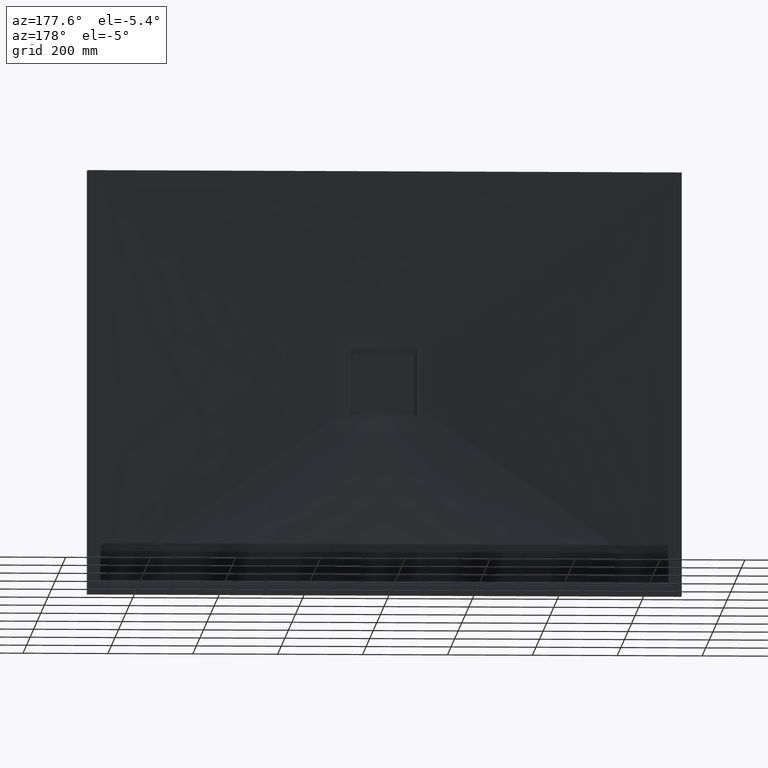
[diagram: clean part render]
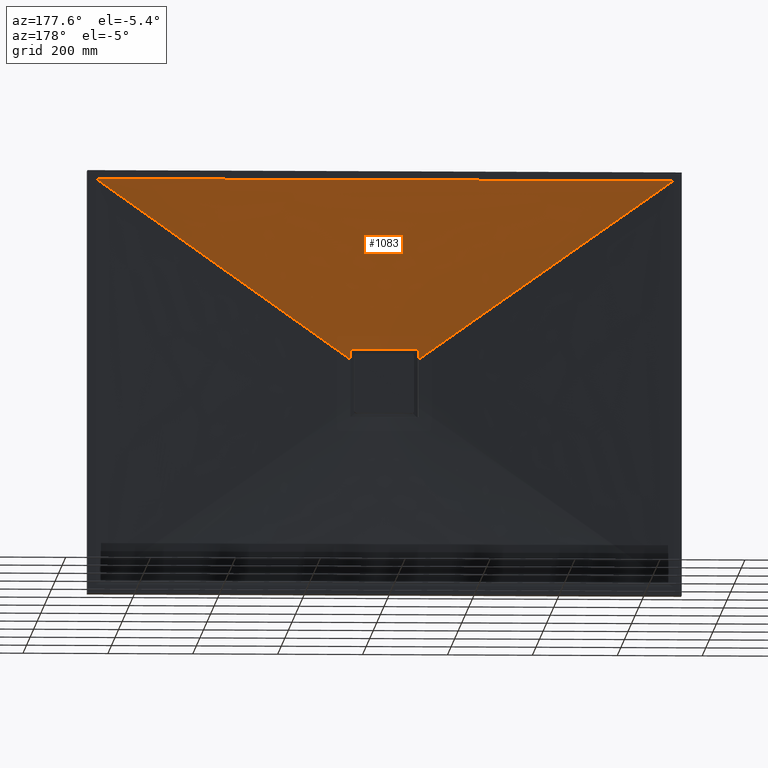
[diagram: same view with one face highlighted and labeled with its STEP entity id]
A machine part, auxiliary view. The second image highlights one B-rep face of the part: STEP entity #1083.
In plain terms, the highlighted face is a freeform B-spline surface patch.
Its self-contained STEP definition (entity closure, byte-faithful):
#6 = CARTESIAN_POINT ( 'NONE',  ( 80.00000000000007100, 20.45860607811348700, 63.48082369487021000 ) ) ;
#59 = CARTESIAN_POINT ( 'NONE',  ( 77.50000000000056800, 20.75706579653857600, 80.00000000000012800 ) ) ;
#105 = CARTESIAN_POINT ( 'NONE',  ( 453.3333333333331400, 35.00000000000014200, 480.0000000000000600 ) ) ;
#106 = CARTESIAN_POINT ( 'NONE',  ( 51.80680068004761600, 20.00000000000001800, 61.03328764796267300 ) ) ;
#107 = CARTESIAN_POINT ( 'NONE',  ( 49.43009145341292800, 20.00000000000001800, 62.97968655354080200 ) ) ;
#119 = CARTESIAN_POINT ( 'NONE',  ( 538.3333333333339400, 35.00000000000014200, 480.0000000000000600 ) ) ;
#121 = CARTESIAN_POINT ( 'NONE',  ( 64.58357499661224200, 20.59916441585733100, 80.00000000000012800 ) ) ;
#131 = VECTOR ( 'NONE', #470, 1000.000000000000000 ) ;
#139 = CARTESIAN_POINT ( 'NONE',  ( 58.28454295115470500, 20.00000000000001800, 54.87369494992555700 ) ) ;
#141 = CARTESIAN_POINT ( 'NONE',  ( 79.98381714763809200, 20.74026820298272300, 77.82733191836771900 ) ) ;
#149 = CARTESIAN_POINT ( 'NONE',  ( -51.80680068004583900, 20.00000000000001800, 61.03328764796267300 ) ) ;
#163 = CARTESIAN_POINT ( 'NONE',  ( -538.3333333333339400, 35.00000000000014200, 480.0000000000000600 ) ) ;
#166 = CARTESIAN_POINT ( 'NONE',  ( 51.66729820673268800, 20.42926260430750300, 80.00000000000014200 ) ) ;
#188 = CARTESIAN_POINT ( 'NONE',  ( -79.74649152433295300, 20.75411443861686300, 78.60894243231788900 ) ) ;
#200 = CARTESIAN_POINT ( 'NONE',  ( -25.83427551179265800, 20.12749929265572400, 80.00000000000012800 ) ) ;
#204 = CARTESIAN_POINT ( 'NONE',  ( -56.23397854736467100, 20.00000000000001800, 56.98022862849527600 ) ) ;
#220 = ORIENTED_EDGE ( 'NONE', *, *, #734, .T. ) ;
#221 = CARTESIAN_POINT ( 'NONE',  ( 80.00000000000007100, 20.73350657552541800, 77.50000000000012800 ) ) ;
#238 = CARTESIAN_POINT ( 'NONE',  ( 79.87240730175285800, 20.74912490909729700, 78.30529735940717700 ) ) ;
#242 = VECTOR ( 'NONE', #1957, 999.9999999999998900 ) ;
#260 = CARTESIAN_POINT ( 'NONE',  ( 78.15820255379992400, 20.76362837704677800, 79.93366033475659500 ) ) ;
#274 = CARTESIAN_POINT ( 'NONE',  ( -58.28454295115470500, 20.00000000000001800, 54.87369494992555700 ) ) ;
#285 = FACE_OUTER_BOUND ( 'NONE', #3033, .T. ) ;
#288 = VERTEX_POINT ( 'NONE', #2056 ) ;
#301 = CARTESIAN_POINT ( 'NONE',  ( 56.66666666666664300, 35.00000000000014200, 480.0000000000000600 ) ) ;
#302 = CARTESIAN_POINT ( 'NONE',  ( -6.908626131613360100, 20.00000000000001800, 79.77533509365680700 ) ) ;
#317 = CARTESIAN_POINT ( 'NONE',  ( 77.50000000000056800, 20.75706579653857600, 80.00000000000012800 ) ) ;
#334 = VERTEX_POINT ( 'NONE', #834 ) ;
#356 = CARTESIAN_POINT ( 'NONE',  ( -311.6666666666674200, 35.00000000000014200, 480.0000000000000600 ) ) ;
#414 = B_SPLINE_CURVE_WITH_KNOTS ( 'NONE', 3,
 ( #317, #121, #166, #2996, #2517, #2639, #200, #2579, #975, #449 ),
 .UNSPECIFIED., .F., .F.,
 ( 4, 2, 2, 2, 4 ),
 ( 0.0000000000000000000, 0.03875217006288059200, 0.07750434012576118400, 0.1162565101886417900, 0.1550086802515223700 ),
 .UNSPECIFIED. ) ;
#423 = CARTESIAN_POINT ( 'NONE',  ( 79.38368863363234600, 20.76143561031202700, 79.15175346207749400 ) ) ;
#449 = CARTESIAN_POINT ( 'NONE',  ( -77.50000000000056800, 20.75706579653857600, 80.00000000000012800 ) ) ;
#466 = CARTESIAN_POINT ( 'NONE',  ( -679.9999999999997700, 35.00000000000014200, 480.0000000000000600 ) ) ;
#470 = DIRECTION ( 'NONE',  ( 1.000000000000000000, 0.0000000000000000000, 0.0000000000000000000 ) ) ;
#525 = CARTESIAN_POINT ( 'NONE',  ( -79.93368267412498100, 20.74670891633738600, 78.15810226411544200 ) ) ;
#551 = CARTESIAN_POINT ( 'NONE',  ( 79.48917342036301600, 20.75992770636584300, 79.02310481713860200 ) ) ;
#564 = CARTESIAN_POINT ( 'NONE',  ( 79.02751074129675100, 20.76438081022865100, 79.48587502428920000 ) ) ;
#566 = CARTESIAN_POINT ( 'NONE',  ( -80.00000000000007100, 20.74051526655202000, 77.83008245027943400 ) ) ;
#574 = CARTESIAN_POINT ( 'NONE',  ( 80.00000000000008500, 20.73701092807298700, 77.66504155642667200 ) ) ;
#575 = LINE ( 'NONE', #1711, #2250 ) ;
#595 = CARTESIAN_POINT ( 'NONE',  ( -80.00000000000007100, 20.73350657552541800, 77.50000000000024200 ) ) ;
#609 = LINE ( 'NONE', #1993, #242 ) ;
#621 = CARTESIAN_POINT ( 'NONE',  ( 79.15324876267757800, 20.76365048624584400, 79.38237639611887200 ) ) ;
#634 = CARTESIAN_POINT ( 'NONE',  ( -566.6666666666664000, 35.00000000000014200, 480.0000000000000600 ) ) ;
#641 = CARTESIAN_POINT ( 'NONE',  ( -80.00000000000007100, 20.73350657552541800, 77.50000000000024200 ) ) ;
#666 = CARTESIAN_POINT ( 'NONE',  ( 79.92040446721443900, 20.74631211121283800, 78.14663438106234100 ) ) ;
#692 = CARTESIAN_POINT ( 'NONE',  ( -77.50000000000056800, 20.75706579653857600, 80.00000000000012800 ) ) ;
#719 = CARTESIAN_POINT ( 'NONE',  ( -33.04474773912780000, 20.00000000000001800, 72.93233070859162100 ) ) ;
#734 = EDGE_CURVE ( 'NONE', #3086, #945, #2422, .T. ) ;
#750 = EDGE_CURVE ( 'NONE', #2405, #1628, #1140, .T. ) ;
#766 = CARTESIAN_POINT ( 'NONE',  ( -80.00000000000007100, 20.35734355943930000, 56.47058823529427200 ) ) ;
#834 = CARTESIAN_POINT ( 'NONE',  ( 80.00000000000007100, 20.73350657552541800, 77.50000000000012800 ) ) ;
#836 = CARTESIAN_POINT ( 'NONE',  ( -80.00000000000007100, 20.45860607811348700, 63.48082369487030300 ) ) ;
#890 = CARTESIAN_POINT ( 'NONE',  ( -26.87177666348894400, 20.00000000000001800, 75.42537924782033100 ) ) ;
#894 = ORIENTED_EDGE ( 'NONE', *, *, #1439, .T. ) ;
#916 = EDGE_CURVE ( 'NONE', #1628, #288, #575, .T. ) ;
#917 = CARTESIAN_POINT ( 'NONE',  ( -113.3333333333332900, 35.00000000000014200, 480.0000000000000600 ) ) ;
#923 = CARTESIAN_POINT ( 'NONE',  ( -49.43009145341115100, 20.00000000000001800, 62.97968655354080200 ) ) ;
#945 = VERTEX_POINT ( 'NONE', #595 ) ;
#975 = CARTESIAN_POINT ( 'NONE',  ( -64.58357517508157700, 20.59916441803910200, 80.00000000000009900 ) ) ;
#988 = B_SPLINE_CURVE_WITH_KNOTS ( 'NONE', 3,
 ( #1081, #6, #1011, #221 ),
 .UNSPECIFIED., .F., .F.,
 ( 4, 4 ),
 ( 0.0000000000000000000, 0.02103277579836349300 ),
 .UNSPECIFIED. ) ;
#1011 = CARTESIAN_POINT ( 'NONE',  ( 80.00000000000007100, 20.58467524346734800, 70.49061542624602300 ) ) ;
#1044 = CARTESIAN_POINT ( 'NONE',  ( -80.00000000000007100, 20.73350657552541800, 77.50000000000024200 ) ) ;
#1069 = CARTESIAN_POINT ( 'NONE',  ( 80.00000000000007100, 20.73350657552541800, 77.50000000000012800 ) ) ;
#1081 = CARTESIAN_POINT ( 'NONE',  ( 80.00000000000007100, 20.35734355943930000, 56.47058823529427200 ) ) ;
#1083 = ADVANCED_FACE ( 'NONE', ( #285 ), #1121, .F. ) ;
#1086 = CARTESIAN_POINT ( 'NONE',  ( 79.67038061985644500, 20.75625936169856100, 78.75144202631260300 ) ) ;
#1121 = B_SPLINE_SURFACE_WITH_KNOTS ( 'NONE', 3, 1, ( 
 ( #2411, #2496 ),
 ( #2856, #2694 ),
 ( #3271, #2068 ),
 ( #2074, #139 ),
 ( #119, #2129 ),
 ( #2657, #106 ),
 ( #105, #107 ),
 ( #3058, #2004 ),
 ( #3027, #2839 ),
 ( #2304, #1917 ),
 ( #1494, #1924 ),
 ( #3105, #2902 ),
 ( #2119, #2994 ),
 ( #3030, #3079 ),
 ( #2269, #1753 ),
 ( #301, #1874 ),
 ( #2077, #2081 ),
 ( #2515, #2139 ),
 ( #2741, #302 ),
 ( #917, #1548 ),
 ( #2547, #1630 ),
 ( #1574, #1787 ),
 ( #1954, #890 ),
 ( #1187, #719 ),
 ( #356, #1757 ),
 ( #1623, #1215 ),
 ( #3235, #1858 ),
 ( #2733, #923 ),
 ( #1602, #149 ),
 ( #163, #204 ),
 ( #634, #274 ),
 ( #2812, #1694 ),
 ( #2356, #2310 ),
 ( #3213, #1941 ) ),
 .UNSPECIFIED., .F., .F., .F.,
 ( 4, 2, 2, 2, 2, 2, 2, 2, 2, 2, 2, 2, 2, 2, 2, 2, 4 ),
 ( 2, 2 ),
 ( 0.0000000000000000000, 0.06250000000000000000, 0.1250000000000000000, 0.1875000000000000000, 0.2500000000000000000, 0.3125000000000000000, 0.3750000000000000000, 0.4375000000000000000, 0.5000000000000000000, 0.5625000000000000000, 0.6250000000000000000, 0.6875000000000000000, 0.7500000000000000000, 0.8125000000000000000, 0.8750000000000000000, 0.9375000000000000000, 1.000000000000000000 ),
 ( 0.0000000000000000000, 1.000000000000000000 ),
 .UNSPECIFIED. ) ;
#1140 = LINE ( 'NONE', #466, #131 ) ;
#1187 = CARTESIAN_POINT ( 'NONE',  ( -283.3333333333332000, 35.00000000000014200, 480.0000000000000600 ) ) ;
#1215 = CARTESIAN_POINT ( 'NONE',  ( -41.67501125818873200, 20.00000000000001800, 68.36426128085403800 ) ) ;
#1242 = CARTESIAN_POINT ( 'NONE',  ( 78.75450217902842100, 20.76506078911380000, 79.66868922616528400 ) ) ;
#1404 = CARTESIAN_POINT ( 'NONE',  ( -80.00000000000007100, 20.35734355943930000, 56.47058823529427200 ) ) ;
#1439 = EDGE_CURVE ( 'NONE', #1495, #3086, #414, .T. ) ;
#1486 = CARTESIAN_POINT ( 'NONE',  ( -77.82738070150679700, 20.76070606300809700, 79.98381226717504000 ) ) ;
#1494 = CARTESIAN_POINT ( 'NONE',  ( 283.3333333333332000, 35.00000000000014200, 480.0000000000000600 ) ) ;
#1495 = VERTEX_POINT ( 'NONE', #59 ) ;
#1548 = CARTESIAN_POINT ( 'NONE',  ( -13.73102880587495600, 20.00000000000001800, 78.88784476878491600 ) ) ;
#1574 = CARTESIAN_POINT ( 'NONE',  ( -198.3333333333341400, 35.00000000000014200, 480.0000000000000600 ) ) ;
#1592 = VERTEX_POINT ( 'NONE', #1404 ) ;
#1602 = CARTESIAN_POINT ( 'NONE',  ( -481.6666666666673700, 35.00000000000014200, 480.0000000000000600 ) ) ;
#1623 = CARTESIAN_POINT ( 'NONE',  ( -368.3333333333340500, 35.00000000000014200, 480.0000000000000600 ) ) ;
#1626 = B_SPLINE_CURVE_WITH_KNOTS ( 'NONE', 3,
 ( #1069, #574, #141, #666, #238, #2375, #1086, #551, #423, #621, #564, #1242, #1627, #260, #3023, #2767 ),
 .UNSPECIFIED., .F., .F.,
 ( 4, 2, 2, 2, 2, 2, 2, 4 ),
 ( 0.0000000000000000000, 0.0004882088861838260900, 0.0009764177723676521900, 0.001464626658551478200, 0.001952835544735304400, 0.002441044430919130500, 0.002929253317102956500, 0.003905671089470646900 ),
 .UNSPECIFIED. ) ;
#1627 = CARTESIAN_POINT ( 'NONE',  ( 78.60908200911687500, 20.76499836056799000, 79.74642391452592000 ) ) ;
#1628 = VERTEX_POINT ( 'NONE', #1664 ) ;
#1630 = CARTESIAN_POINT ( 'NONE',  ( -17.09895815464257400, 20.00000000000001800, 78.22510923450504100 ) ) ;
#1664 = CARTESIAN_POINT ( 'NONE',  ( 679.9999999999997700, 35.00000000000014200, 480.0000000000000600 ) ) ;
#1694 = CARTESIAN_POINT ( 'NONE',  ( -62.06099151943256200, 20.00000000000001800, 50.56326409664846700 ) ) ;
#1711 = CARTESIAN_POINT ( 'NONE',  ( 372.6787145305916600, 27.49999999999985800, 263.0673279039464200 ) ) ;
#1753 = CARTESIAN_POINT ( 'NONE',  ( 13.73102880587495600, 20.00000000000001800, 78.88784476878491600 ) ) ;
#1757 = CARTESIAN_POINT ( 'NONE',  ( -36.01526803026189300, 20.00000000000001800, 71.50789643497779500 ) ) ;
#1787 = CARTESIAN_POINT ( 'NONE',  ( -23.66941439471226300, 20.00000000000001800, 76.49379652583509400 ) ) ;
#1858 = CARTESIAN_POINT ( 'NONE',  ( -44.36422355240665600, 20.00000000000001800, 66.64525885662853000 ) ) ;
#1874 = CARTESIAN_POINT ( 'NONE',  ( 6.908626131613360100, 20.00000000000001800, 79.77533509365680700 ) ) ;
#1917 = CARTESIAN_POINT ( 'NONE',  ( 36.01526803026189300, 20.00000000000001800, 71.50789643497779500 ) ) ;
#1920 = CARTESIAN_POINT ( 'NONE',  ( -80.00000000000007100, 20.58467524346734100, 70.49061542624612300 ) ) ;
#1924 = CARTESIAN_POINT ( 'NONE',  ( 33.04474773912780000, 20.00000000000001800, 72.93233070859162100 ) ) ;
#1929 = CARTESIAN_POINT ( 'NONE',  ( -77.66506669784371300, 20.75908371244697600, 80.00000000000012800 ) ) ;
#1941 = CARTESIAN_POINT ( 'NONE',  ( -65.35742906118002800, 20.00000000000001800, 46.13465580789255700 ) ) ;
#1954 = CARTESIAN_POINT ( 'NONE',  ( -226.6666666666665700, 35.00000000000014200, 480.0000000000000600 ) ) ;
#1957 = DIRECTION ( 'NONE',  ( 0.8168055355349187500, -0.01993367139264316500, -0.5765686133187660800 ) ) ;
#1974 = EDGE_CURVE ( 'NONE', #288, #334, #988, .T. ) ;
#1993 = CARTESIAN_POINT ( 'NONE',  ( -372.6787145305899000, 27.49999999999985800, 263.0673279039464200 ) ) ;
#2004 = CARTESIAN_POINT ( 'NONE',  ( 44.36422355240665600, 20.00000000000001800, 66.64525885662853000 ) ) ;
#2056 = CARTESIAN_POINT ( 'NONE',  ( 80.00000000000007100, 20.35734355943930000, 56.47058823529427200 ) ) ;
#2068 = CARTESIAN_POINT ( 'NONE',  ( 62.06099151943256200, 20.00000000000001800, 50.56326409664846700 ) ) ;
#2074 = CARTESIAN_POINT ( 'NONE',  ( 566.6666666666664000, 35.00000000000014200, 480.0000000000000600 ) ) ;
#2077 = CARTESIAN_POINT ( 'NONE',  ( 28.33333333333243300, 35.00000000000014200, 480.0000000000000600 ) ) ;
#2081 = CARTESIAN_POINT ( 'NONE',  ( 3.454373351640782600, 20.00000000000001800, 80.00000000000012800 ) ) ;
#2089 = ORIENTED_EDGE ( 'NONE', *, *, #2855, .T. ) ;
#2119 = CARTESIAN_POINT ( 'NONE',  ( 198.3333333333323500, 35.00000000000014200, 480.0000000000000600 ) ) ;
#2129 = CARTESIAN_POINT ( 'NONE',  ( 56.23397854736467100, 20.00000000000001800, 56.98022862849527600 ) ) ;
#2139 = CARTESIAN_POINT ( 'NONE',  ( -3.454373351640782600, 20.00000000000001800, 80.00000000000012800 ) ) ;
#2160 = CARTESIAN_POINT ( 'NONE',  ( -78.14672769070547500, 20.76319871978725800, 79.92038112626157400 ) ) ;
#2243 = DIRECTION ( 'NONE',  ( -0.8168055355349187500, -0.01993367139264316500, -0.5765686133187660800 ) ) ;
#2250 = VECTOR ( 'NONE', #2243, 999.9999999999998900 ) ;
#2269 = CARTESIAN_POINT ( 'NONE',  ( 113.3333333333332900, 35.00000000000014200, 480.0000000000000600 ) ) ;
#2304 = CARTESIAN_POINT ( 'NONE',  ( 311.6666666666656600, 35.00000000000014200, 480.0000000000000600 ) ) ;
#2310 = CARTESIAN_POINT ( 'NONE',  ( -63.78699026210377100, 20.00000000000001800, 48.35944410658387900 ) ) ;
#2356 = CARTESIAN_POINT ( 'NONE',  ( -651.6666666666673100, 35.00000000000014200, 480.0000000000000600 ) ) ;
#2375 = CARTESIAN_POINT ( 'NONE',  ( 79.74707787748417300, 20.75409927133345900, 78.60790850479615700 ) ) ;
#2405 = VERTEX_POINT ( 'NONE', #2790 ) ;
#2411 = CARTESIAN_POINT ( 'NONE',  ( 679.9999999999997700, 35.00000000000014200, 480.0000000000000600 ) ) ;
#2422 = B_SPLINE_CURVE_WITH_KNOTS ( 'NONE', 3,
 ( #692, #1929, #1486, #2160, #2945, #2939, #2840, #2723, #2768, #2584, #2844, #2795, #188, #525, #566, #641 ),
 .UNSPECIFIED., .F., .F.,
 ( 4, 2, 2, 2, 2, 2, 2, 4 ),
 ( 0.0000000000000000000, 0.0004882088434272673300, 0.0009764176868545346600, 0.001464626530281801900, 0.001952835373709069300, 0.002441044217136336500, 0.002929253060563603800, 0.003905670747418100500 ),
 .UNSPECIFIED. ) ;
#2486 = B_SPLINE_CURVE_WITH_KNOTS ( 'NONE', 3,
 ( #1044, #1920, #836, #766 ),
 .UNSPECIFIED., .F., .F.,
 ( 4, 4 ),
 ( 0.0000000000000000000, 0.02103277579836346600 ),
 .UNSPECIFIED. ) ;
#2496 = CARTESIAN_POINT ( 'NONE',  ( 65.35742906118180400, 20.00000000000001800, 46.13465580789255700 ) ) ;
#2515 = CARTESIAN_POINT ( 'NONE',  ( -28.33333333333421000, 35.00000000000014200, 480.0000000000000600 ) ) ;
#2517 = CARTESIAN_POINT ( 'NONE',  ( 12.91759429616527800, 19.99999999489199400, 80.00000000000012800 ) ) ;
#2547 = CARTESIAN_POINT ( 'NONE',  ( -141.6666666666674800, 35.00000000000014200, 480.0000000000000600 ) ) ;
#2579 = CARTESIAN_POINT ( 'NONE',  ( -51.66729859523427100, 20.42926260953566600, 80.00000000000011400 ) ) ;
#2584 = CARTESIAN_POINT ( 'NONE',  ( -79.38250364354181000, 20.76145051686092600, 79.15310365543516000 ) ) ;
#2606 = EDGE_CURVE ( 'NONE', #334, #1495, #1626, .T. ) ;
#2639 = CARTESIAN_POINT ( 'NONE',  ( -12.91759597637902600, 20.00000000510804200, 80.00000000000012800 ) ) ;
#2657 = CARTESIAN_POINT ( 'NONE',  ( 481.6666666666673700, 35.00000000000014200, 480.0000000000000600 ) ) ;
#2694 = CARTESIAN_POINT ( 'NONE',  ( 63.78699026210554700, 20.00000000000001800, 48.35944410658387900 ) ) ;
#2723 = CARTESIAN_POINT ( 'NONE',  ( -79.02326010243393700, 20.76439862313676000, 79.48905563611587900 ) ) ;
#2733 = CARTESIAN_POINT ( 'NONE',  ( -453.3333333333331400, 35.00000000000014200, 480.0000000000000600 ) ) ;
#2741 = CARTESIAN_POINT ( 'NONE',  ( -56.66666666666664300, 35.00000000000014200, 480.0000000000000600 ) ) ;
#2767 = CARTESIAN_POINT ( 'NONE',  ( 77.50000000000056800, 20.75706579653857600, 80.00000000000012800 ) ) ;
#2768 = CARTESIAN_POINT ( 'NONE',  ( -79.15190171707806100, 20.76365987754816800, 79.38355843569441100 ) ) ;
#2773 = EDGE_CURVE ( 'NONE', #2405, #1592, #609, .T. ) ;
#2790 = CARTESIAN_POINT ( 'NONE',  ( -679.9999999999997700, 35.00000000000014200, 480.0000000000000600 ) ) ;
#2795 = CARTESIAN_POINT ( 'NONE',  ( -79.66878301904603200, 20.75630240063226500, 78.75433979079136300 ) ) ;
#2812 = CARTESIAN_POINT ( 'NONE',  ( -623.3333333333330300, 35.00000000000014200, 480.0000000000000600 ) ) ;
#2839 = CARTESIAN_POINT ( 'NONE',  ( 41.67501125819050900, 20.00000000000001800, 68.36426128085403800 ) ) ;
#2840 = CARTESIAN_POINT ( 'NONE',  ( -78.75158757927056300, 20.76506062933647800, 79.67029772027865400 ) ) ;
#2844 = CARTESIAN_POINT ( 'NONE',  ( -79.48599141747010300, 20.75998114158098700, 79.02735921910986900 ) ) ;
#2855 = EDGE_CURVE ( 'NONE', #945, #1592, #2486, .T. ) ;
#2856 = CARTESIAN_POINT ( 'NONE',  ( 651.6666666666673100, 35.00000000000014200, 480.0000000000000600 ) ) ;
#2868 = ORIENTED_EDGE ( 'NONE', *, *, #750, .T. ) ;
#2902 = CARTESIAN_POINT ( 'NONE',  ( 26.87177666348894400, 20.00000000000001800, 75.42537924782033100 ) ) ;
#2914 = ORIENTED_EDGE ( 'NONE', *, *, #1974, .T. ) ;
#2926 = ORIENTED_EDGE ( 'NONE', *, *, #2773, .F. ) ;
#2939 = CARTESIAN_POINT ( 'NONE',  ( -78.60804628992090700, 20.76499864895591000, 79.74701107190730900 ) ) ;
#2945 = CARTESIAN_POINT ( 'NONE',  ( -78.30541328484366700, 20.76407218991329600, 79.87236902240745500 ) ) ;
#2994 = CARTESIAN_POINT ( 'NONE',  ( 23.66941439471226300, 20.00000000000001800, 76.49379652583509400 ) ) ;
#2996 = CARTESIAN_POINT ( 'NONE',  ( 25.83427483130532600, 20.12749928539670900, 80.00000000000011400 ) ) ;
#3008 = ORIENTED_EDGE ( 'NONE', *, *, #916, .T. ) ;
#3023 = CARTESIAN_POINT ( 'NONE',  ( 77.83013465113153000, 20.76110164370300000, 80.00000000000012800 ) ) ;
#3027 = CARTESIAN_POINT ( 'NONE',  ( 368.3333333333322900, 35.00000000000014200, 480.0000000000000600 ) ) ;
#3030 = CARTESIAN_POINT ( 'NONE',  ( 141.6666666666657200, 35.00000000000014200, 480.0000000000000600 ) ) ;
#3033 = EDGE_LOOP ( 'NONE', ( #3072, #894, #220, #2089, #2926, #2868, #3008, #2914 ) ) ;
#3058 = CARTESIAN_POINT ( 'NONE',  ( 396.6666666666665200, 35.00000000000014200, 480.0000000000000600 ) ) ;
#3072 = ORIENTED_EDGE ( 'NONE', *, *, #2606, .T. ) ;
#3079 = CARTESIAN_POINT ( 'NONE',  ( 17.09895815464435000, 20.00000000000001800, 78.22510923450504100 ) ) ;
#3086 = VERTEX_POINT ( 'NONE', #3291 ) ;
#3105 = CARTESIAN_POINT ( 'NONE',  ( 226.6666666666665700, 35.00000000000014200, 480.0000000000000600 ) ) ;
#3213 = CARTESIAN_POINT ( 'NONE',  ( -679.9999999999997700, 35.00000000000014200, 480.0000000000000600 ) ) ;
#3235 = CARTESIAN_POINT ( 'NONE',  ( -396.6666666666665200, 35.00000000000014200, 480.0000000000000600 ) ) ;
#3271 = CARTESIAN_POINT ( 'NONE',  ( 623.3333333333330300, 35.00000000000014200, 480.0000000000000600 ) ) ;
#3291 = CARTESIAN_POINT ( 'NONE',  ( -77.50000000000056800, 20.75706579653857600, 80.00000000000012800 ) ) ;